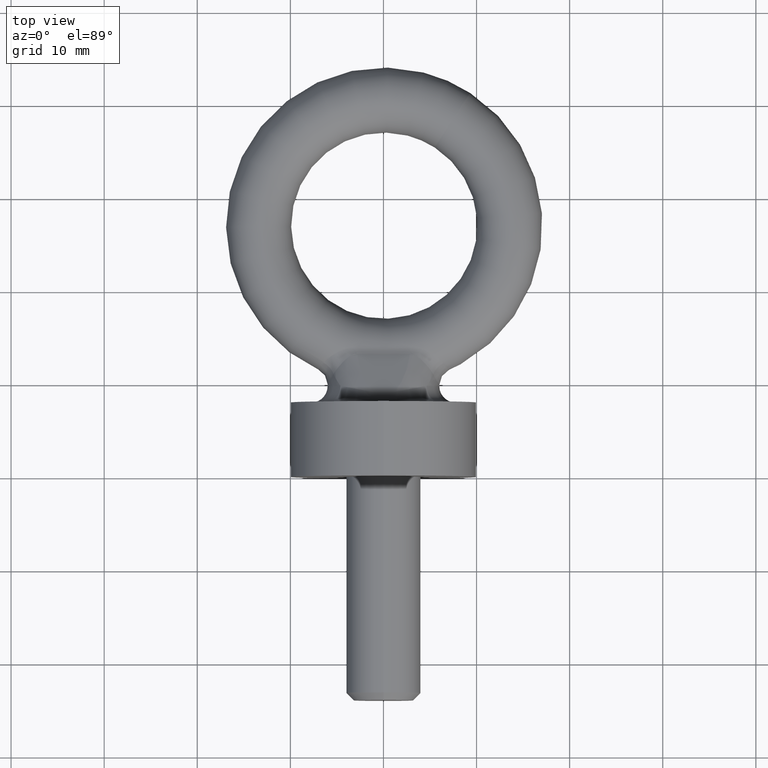
[diagram: clean part render]
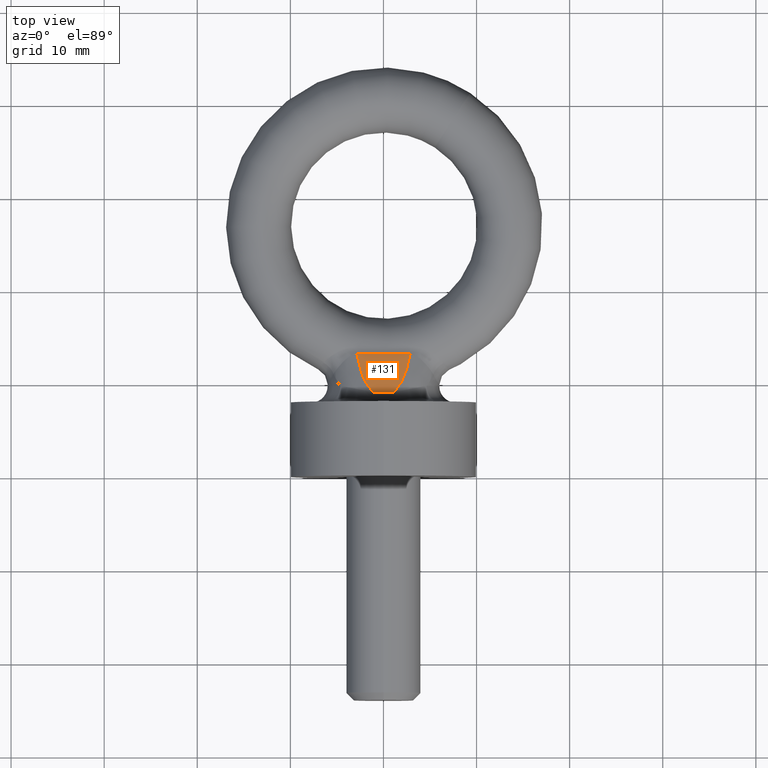
[diagram: same view with one face highlighted and labeled with its STEP entity id]
A machine part, top view. The second image highlights one B-rep face of the part: STEP entity #131.
In plain terms, the highlighted planar face has unit normal (0, 0.4138, 0.9104).
Its self-contained STEP definition (entity closure, byte-faithful):
#116=PLANE('',#632);
#121=LINE('',#831,#125);
#125=VECTOR('',#696,1.);
#131=ADVANCED_FACE('',(#176),#116,.T.);
#176=FACE_OUTER_BOUND('',#210,.T.);
#210=EDGE_LOOP('',(#329,#330,#331,#332,#333,#334));
#254=B_SPLINE_CURVE_WITH_KNOTS('',3,(#825,#826,#827,#828),.UNSPECIFIED.,
 .F.,.F.,(4,4),(0.,1.),.UNSPECIFIED.);
#255=B_SPLINE_CURVE_WITH_KNOTS('',3,(#833,#834,#835,#836),.UNSPECIFIED.,
 .F.,.F.,(4,4),(0.,1.),.UNSPECIFIED.);
#256=B_SPLINE_CURVE_WITH_KNOTS('',3,(#840,#841,#842,#843,#844,#845,#846),
 .UNSPECIFIED.,.F.,.F.,(4,3,4),(0.,0.500045050779846,1.),.UNSPECIFIED.);
#329=ORIENTED_EDGE('',*,*,#540,.T.);
#330=ORIENTED_EDGE('',*,*,#541,.T.);
#331=ORIENTED_EDGE('',*,*,#542,.T.);
#332=ORIENTED_EDGE('',*,*,#543,.T.);
#333=ORIENTED_EDGE('',*,*,#544,.T.);
#334=ORIENTED_EDGE('',*,*,#545,.T.);
#491=VERTEX_POINT('',#829);
#492=VERTEX_POINT('',#830);
#493=VERTEX_POINT('',#832);
#494=VERTEX_POINT('',#837);
#495=VERTEX_POINT('',#839);
#496=VERTEX_POINT('',#847);
#540=EDGE_CURVE('',#491,#492,#254,.T.);
#541=EDGE_CURVE('',#492,#493,#121,.T.);
#542=EDGE_CURVE('',#493,#494,#255,.T.);
#543=EDGE_CURVE('',#494,#495,#617,.T.);
#544=EDGE_CURVE('',#495,#496,#256,.T.);
#545=EDGE_CURVE('',#496,#491,#618,.T.);
#617=ELLIPSE('',#630,7.24982758415674,3.);
#618=ELLIPSE('',#631,7.24982758415674,3.);
#630=AXIS2_PLACEMENT_3D('',#838,#697,#698);
#631=AXIS2_PLACEMENT_3D('',#848,#699,#700);
#632=AXIS2_PLACEMENT_3D('',#849,#701,#702);
#696=DIRECTION('',(1.,0.,0.));
#697=DIRECTION('',(0.,0.413802944301184,0.910366477462605));
#698=DIRECTION('',(0.,0.910366477462605,-0.413802944301184));
#699=DIRECTION('',(0.,0.413802944301184,0.910366477462605));
#700=DIRECTION('',(0.,0.910366477462605,-0.413802944301184));
#701=DIRECTION('',(0.,0.413802944301184,0.910366477462605));
#702=DIRECTION('',(0.,-0.910366477462605,0.413802944301184));
#825=CARTESIAN_POINT('',(-1.29807933623836,9.24140883290355,5.43572325777111));
#826=CARTESIAN_POINT('',(-1.22972179222822,9.16923105647855,5.4685313379643));
#827=CARTESIAN_POINT('',(-1.1610043878567,9.09733316807214,5.50121219633084));
#828=CARTESIAN_POINT('',(-1.09177816145625,9.02584484747294,5.5337068875123));
#829=CARTESIAN_POINT('',(-1.29807933623836,9.24140883290355,5.43572325777111));
#830=CARTESIAN_POINT('',(-1.09177816145625,9.02584484747294,5.5337068875123));
#831=CARTESIAN_POINT('',(20.,9.02584484747293,5.53370688751231));
#832=CARTESIAN_POINT('',(1.09177816146425,9.0258448474812,5.53370688750855));
#833=CARTESIAN_POINT('',(1.09177816146425,9.0258448474812,5.53370688750855));
#834=CARTESIAN_POINT('',(1.16100438786199,9.09733316807768,5.50121219632833));
#835=CARTESIAN_POINT('',(1.22972179223085,9.16923105648133,5.46853133796303));
#836=CARTESIAN_POINT('',(1.29807933623836,9.24140883290355,5.43572325777111));
#837=CARTESIAN_POINT('',(1.29807933623836,9.24140883290355,5.43572325777111));
#838=CARTESIAN_POINT('',(0.,15.1915812487468,2.73109943238781));
#839=CARTESIAN_POINT('',(2.853847831004,13.1566673984394,3.65606027343665));
#840=CARTESIAN_POINT('',(2.853847831004,13.1566673984394,3.65606027343665));
#841=CARTESIAN_POINT('',(1.90247629505257,13.1645035853109,3.65249837031321));
#842=CARTESIAN_POINT('',(0.95127556847852,13.1923280953035,3.63985086577115));
#843=CARTESIAN_POINT('',(-0.00013385441546216,13.1910398621904,3.64043642627708));
#844=CARTESIAN_POINT('',(-0.951404332614799,13.1897518172121,3.64102190126721));
#845=CARTESIAN_POINT('',(-1.90242569377451,13.1604336870635,3.65434832406204));
#846=CARTESIAN_POINT('',(-2.85368205113535,13.1555424586018,3.65657160972645));
#847=CARTESIAN_POINT('',(-2.85368205113535,13.1555424586018,3.65657160972645));
#848=CARTESIAN_POINT('',(0.,15.1915812487468,2.73109943238781));
#849=CARTESIAN_POINT('',(20.,8.,6.));